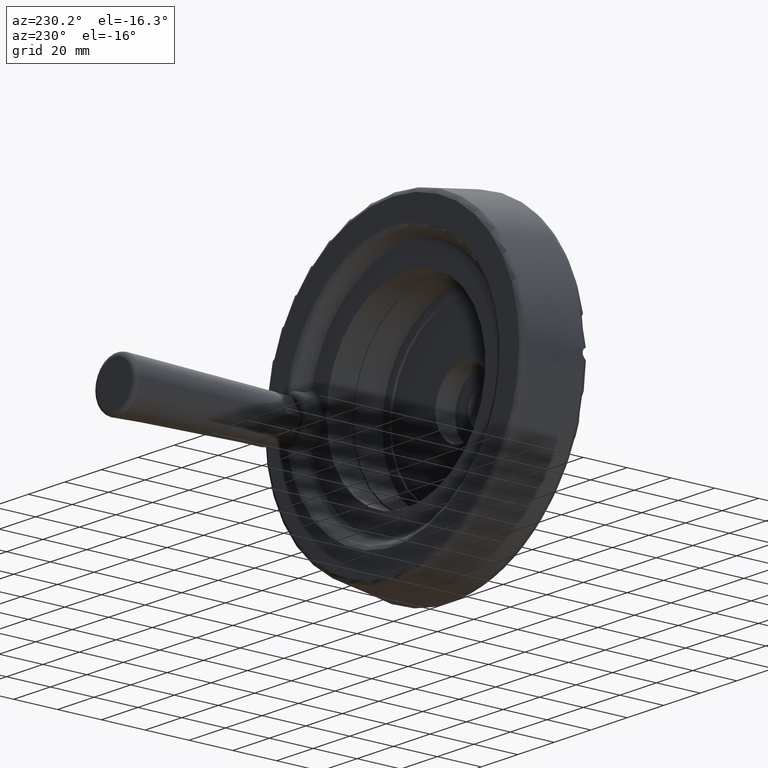
[diagram: clean part render]
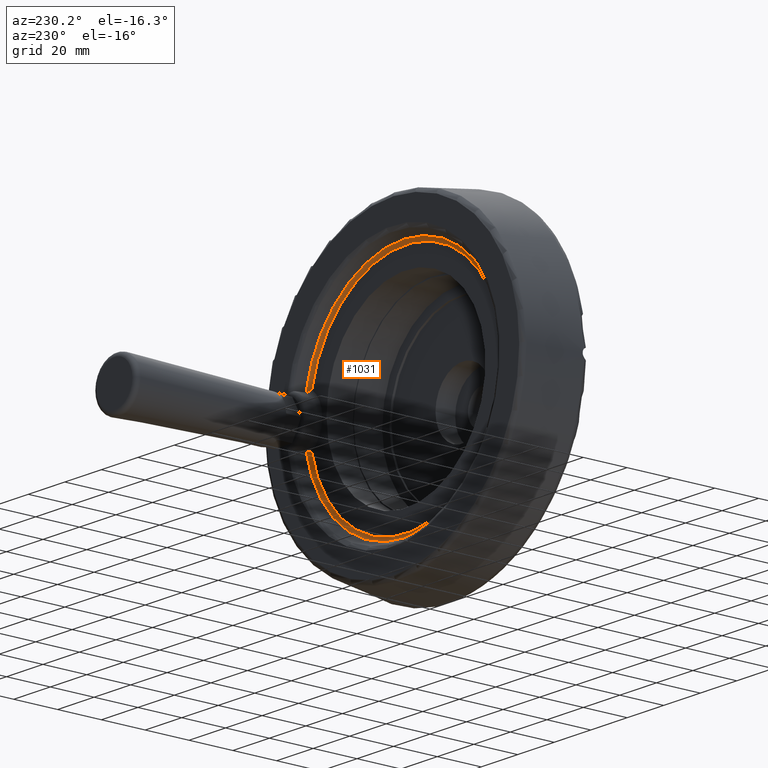
[diagram: same view with one face highlighted and labeled with its STEP entity id]
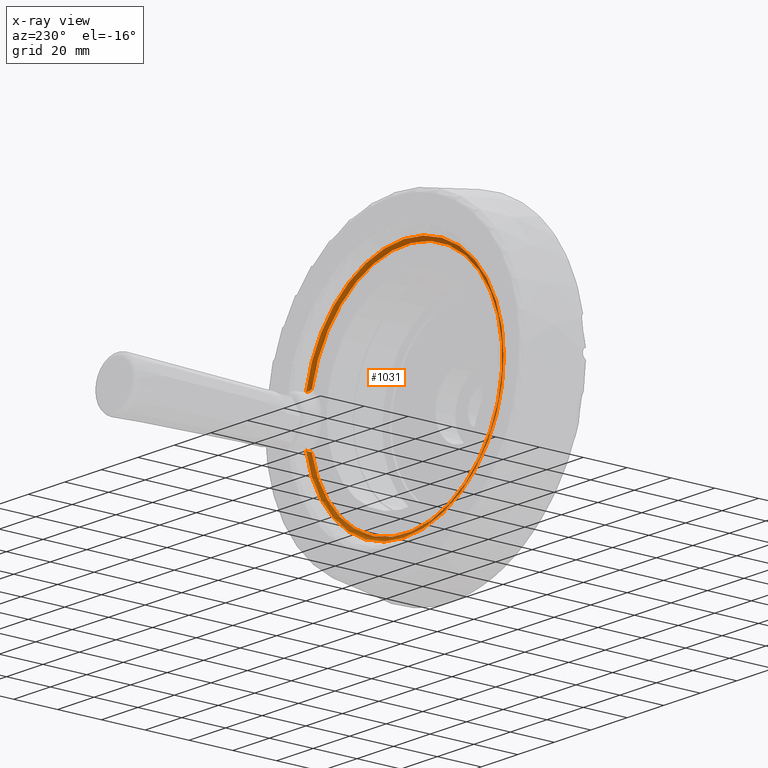
[diagram: x-ray of the same camera — body ghosted, the highlighted face saturated]
A machine part, auxiliary view. The second image highlights one B-rep face of the part: STEP entity #1031.
The next image is the same camera in x-ray: the body ghosted, the highlighted face saturated — about 0% of this face is hidden behind the body in this view.
In plain terms, the highlighted toroidal blend (fillet) surface has major radius 52.8513 mm and minor (blend) radius 2 mm.
Its self-contained STEP definition (entity closure, byte-faithful):
#40=B_SPLINE_CURVE_WITH_KNOTS('',3,(#1953,#1954,#1955,#1956,#1957,#1958,
#1959,#1960,#1961,#1962),.UNSPECIFIED.,.F.,.F.,(4,2,2,2,4),(-0.23931950790974,
-0.159803254029141,-0.0809039868298873,0.,0.000753793715404079),
 .UNSPECIFIED.);
#41=B_SPLINE_CURVE_WITH_KNOTS('',3,(#1965,#1966,#1967,#1968,#1969,#1970,
#1971,#1972,#1973,#1974),.UNSPECIFIED.,.F.,.F.,(4,2,2,2,4),(-0.239317980687607,
-0.159735174420173,-0.0808839232685273,0.,0.000755440807607113),
 .UNSPECIFIED.);
#278=FACE_OUTER_BOUND('',#362,.T.);
#362=EDGE_LOOP('',(#898,#899,#900,#901));
#417=CIRCLE('',#1099,52.8512593350917);
#434=CIRCLE('',#1140,54.5788171368886);
#495=VERTEX_POINT('',#1703);
#496=VERTEX_POINT('',#1704);
#531=VERTEX_POINT('',#1952);
#532=VERTEX_POINT('',#1963);
#615=EDGE_CURVE('',#495,#496,#417,.T.);
#662=EDGE_CURVE('',#531,#496,#40,.T.);
#663=EDGE_CURVE('',#531,#532,#434,.T.);
#664=EDGE_CURVE('',#532,#495,#41,.T.);
#898=ORIENTED_EDGE('',*,*,#615,.T.);
#899=ORIENTED_EDGE('',*,*,#662,.F.);
#900=ORIENTED_EDGE('',*,*,#663,.T.);
#901=ORIENTED_EDGE('',*,*,#664,.T.);
#978=TOROIDAL_SURFACE('',#1139,52.8512593350917,2.);
#1031=ADVANCED_FACE('',(#278),#978,.F.);
#1099=AXIS2_PLACEMENT_3D('',#1705,#1299,#1300);
#1139=AXIS2_PLACEMENT_3D('',#1951,#1401,#1402);
#1140=AXIS2_PLACEMENT_3D('',#1964,#1403,#1404);
#1299=DIRECTION('center_axis',(1.23614811126766E-16,-1.,0.));
#1300=DIRECTION('ref_axis',(-1.,-1.23614811126766E-16,1.22464679914735E-16));
#1401=DIRECTION('center_axis',(1.23614811126766E-16,-1.,0.));
#1402=DIRECTION('ref_axis',(0.,0.,-1.));
#1403=DIRECTION('center_axis',(-8.13665874685864E-17,1.,1.89803504177774E-32));
#1404=DIRECTION('ref_axis',(-1.,-8.13665874685864E-17,0.));
#1703=CARTESIAN_POINT('',(51.5882277426083,31.,11.4852240588459));
#1704=CARTESIAN_POINT('',(51.5882277426083,31.,-11.4852240588459));
#1705=CARTESIAN_POINT('Origin',(-3.83197726007489E-15,31.,0.));
#1951=CARTESIAN_POINT('Origin',(-4.07920688232843E-15,33.,0.));
#1952=CARTESIAN_POINT('',(53.5198510202014,31.9922579489518,-10.6991974856701));
#1953=CARTESIAN_POINT('Ctrl Pts',(53.5198510202014,31.9922579489519,-10.6991974856701));
#1954=CARTESIAN_POINT('Ctrl Pts',(53.3796737395779,31.7773408381896,-10.7608668639894));
#1955=CARTESIAN_POINT('Ctrl Pts',(53.200535359543,31.5945898494193,-10.8385400026256));
#1956=CARTESIAN_POINT('Ctrl Pts',(52.7969507073699,31.3014685042533,-11.0085815640977));
#1957=CARTESIAN_POINT('Ctrl Pts',(52.5734007828175,31.190837903062,-11.1005911015829));
#1958=CARTESIAN_POINT('Ctrl Pts',(52.0993178111285,31.0396426887408,-11.289932229555));
#1959=CARTESIAN_POINT('Ctrl Pts',(51.8476762615011,31.0007220985302,-11.3875731488884));
#1960=CARTESIAN_POINT('Ctrl Pts',(51.5929311740305,31.0000033179221,-11.4834545143789));
#1961=CARTESIAN_POINT('Ctrl Pts',(51.5905794989474,31.,-11.4843393947142));
#1962=CARTESIAN_POINT('Ctrl Pts',(51.5882277426083,31.,-11.4852240588459));
#1963=CARTESIAN_POINT('',(53.5198510202014,31.9922579489519,10.6991974856701));
#1964=CARTESIAN_POINT('Origin',(0.,31.9922579489518,-6.68397737079393E-15));
#1965=CARTESIAN_POINT('Ctrl Pts',(53.5198510202014,31.9922579489518,10.6991974856701));
#1966=CARTESIAN_POINT('Ctrl Pts',(53.3795566646463,31.7771613411562,10.7609183697556));
#1967=CARTESIAN_POINT('Ctrl Pts',(53.2002369769255,31.594285375739,10.8386692693396));
#1968=CARTESIAN_POINT('Ctrl Pts',(52.7965273365999,31.3012481843407,11.0087564161646));
#1969=CARTESIAN_POINT('Ctrl Pts',(52.5730995047205,31.1907234676532,11.100712659158));
#1970=CARTESIAN_POINT('Ctrl Pts',(52.0992080761458,31.0396265293809,11.2899747913729));
#1971=CARTESIAN_POINT('Ctrl Pts',(51.8476290431101,31.0007235210181,11.3875908052878));
#1972=CARTESIAN_POINT('Ctrl Pts',(51.5929414512861,31.0000033324379,11.4834506472847));
#1973=CARTESIAN_POINT('Ctrl Pts',(51.5905846377002,31.,11.484337461661));
#1974=CARTESIAN_POINT('Ctrl Pts',(51.5882277426083,31.,11.4852240588459));